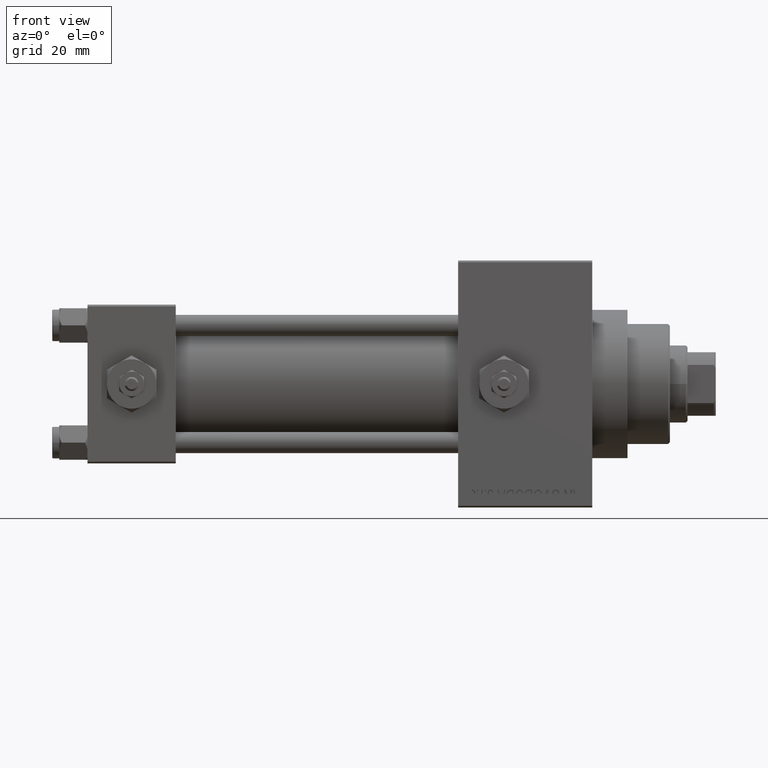
[diagram: clean part render]
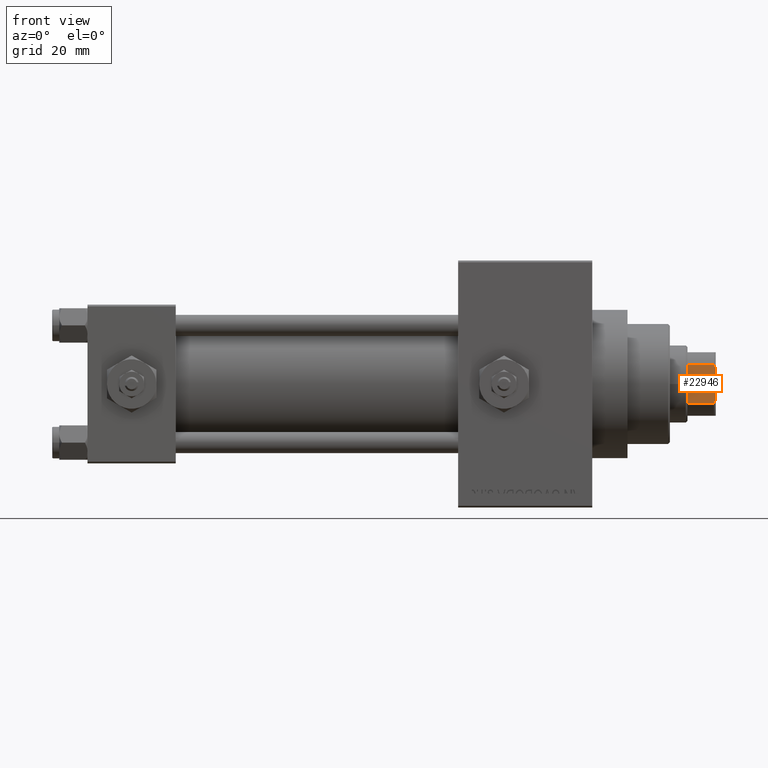
[diagram: same view with one face highlighted and labeled with its STEP entity id]
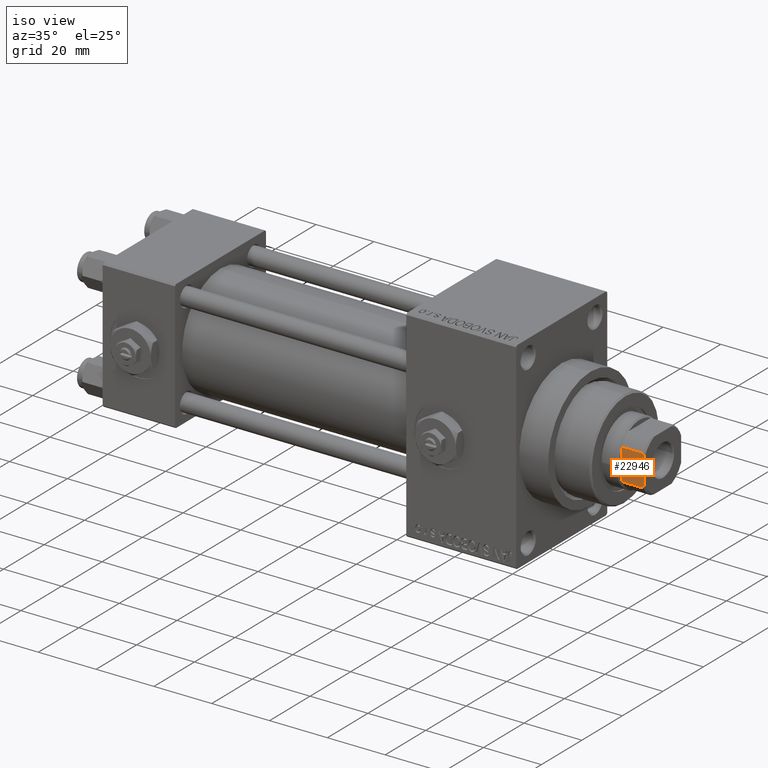
[diagram: same view with one face highlighted and labeled with its STEP entity id]
A machine part, front view. The second image highlights one B-rep face of the part: STEP entity #22946.
A second angle (iso view) of the same face is appended — the face is thin or edge-on in the first view.
In plain terms, the highlighted planar face has unit normal (0, 1, 0).
Its self-contained STEP definition (entity closure, byte-faithful):
#710 = DIRECTION ( 'NONE',  ( -1.927470528863119049E-16, 1.000000000000000000, -0.000000000000000000 ) ) ;
#982 = PLANE ( 'NONE',  #29408 ) ;
#1311 = DIRECTION ( 'NONE',  ( -0.000000000000000000, -0.000000000000000000, 1.000000000000000000 ) ) ;
#1381 = CARTESIAN_POINT ( 'NONE',  ( 8.999999999999996447, -5.408326913195990571, 152.5000000000000568 ) ) ;
#2366 = LINE ( 'NONE', #47356, #15179 ) ;
#4623 = CARTESIAN_POINT ( 'NONE',  ( 8.999999999999996447, 5.063687070142441904, 152.6775166608139216 ) ) ;
#8918 = CARTESIAN_POINT ( 'NONE',  ( 8.999999999999996447, 8.999999999999998224, 145.0000000000000284 ) ) ;
#8957 = EDGE_LOOP ( 'NONE', ( #22531, #10017, #26072, #28160, #10818, #29090 ) ) ;
#10017 = ORIENTED_EDGE ( 'NONE', *, *, #35320, .T. ) ;
#10818 = ORIENTED_EDGE ( 'NONE', *, *, #43238, .F. ) ;
#11495 = CARTESIAN_POINT ( 'NONE',  ( 8.999999999999996447, -5.408326913195990571, 152.5000000000000568 ) ) ;
#11687 = VERTEX_POINT ( 'NONE', #25813 ) ;
#12245 = CARTESIAN_POINT ( 'NONE',  ( 8.999999999999996447, -5.408326913195990571, -0.001000000000001000089 ) ) ;
#12371 = VERTEX_POINT ( 'NONE', #46015 ) ;
#12646 = FACE_OUTER_BOUND ( 'NONE', #8957, .T. ) ;
#12783 = VERTEX_POINT ( 'NONE', #1381 ) ;
#13804 = EDGE_CURVE ( 'NONE', #11687, #42621, #31543, .T. ) ;
#14472 = VECTOR ( 'NONE', #35511, 1000.000000000000000 ) ;
#15179 = VECTOR ( 'NONE', #21251, 1000.000000000000000 ) ;
#15573 = EDGE_CURVE ( 'NONE', #21461, #11687, #34767, .T. ) ;
#16145 = DIRECTION ( 'NONE',  ( -1.000000000000000000, -1.927470528863119049E-16, 0.000000000000000000 ) ) ;
#16390 = DIRECTION ( 'NONE',  ( 1.927470528863119049E-16, -1.000000000000000000, 0.000000000000000000 ) ) ;
#21251 = DIRECTION ( 'NONE',  ( -1.927470528863119049E-16, 1.000000000000000000, -0.000000000000000000 ) ) ;
#21461 = VERTEX_POINT ( 'NONE', #36085 ) ;
#22531 = ORIENTED_EDGE ( 'NONE', *, *, #13804, .T. ) ;
#22946 = ADVANCED_FACE ( 'NONE', ( #12646 ), #982, .F. ) ;
#23988 = CARTESIAN_POINT ( 'NONE',  ( 8.999999999999998224, 4.714305797500226269, 152.8450817439748732 ) ) ;
#24572 = B_SPLINE_CURVE_WITH_KNOTS ( 'NONE', 3,
 ( #41573, #48777, #42044, #11495 ),
 .UNSPECIFIED., .F., .F.,
 ( 4, 4 ),
 ( 0.000000000000000000, 0.001162453897363173059 ),
 .UNSPECIFIED. ) ;
#24639 = EDGE_CURVE ( 'NONE', #31947, #12371, #2366, .T. ) ;
#24709 = CARTESIAN_POINT ( 'NONE',  ( 8.999999999999998224, -4.358898943540684634, 153.0000000000000284 ) ) ;
#25813 = CARTESIAN_POINT ( 'NONE',  ( 8.999999999999996447, 5.408326913195991459, 145.0000000000000284 ) ) ;
#26072 = ORIENTED_EDGE ( 'NONE', *, *, #24639, .F. ) ;
#27340 = CARTESIAN_POINT ( 'NONE',  ( 8.999999999999996447, 8.999999999999998224, 153.0000000000000284 ) ) ;
#27592 = B_SPLINE_CURVE_WITH_KNOTS ( 'NONE', 3,
 ( #30964, #4623, #23988, #46113 ),
 .UNSPECIFIED., .F., .F.,
 ( 4, 4 ),
 ( 0.000000000000000000, 0.001162453897363235292 ),
 .UNSPECIFIED. ) ;
#28160 = ORIENTED_EDGE ( 'NONE', *, *, #44937, .T. ) ;
#28575 = CARTESIAN_POINT ( 'NONE',  ( 8.999999999999996447, 5.408326913195991459, 152.5000000000000000 ) ) ;
#29090 = ORIENTED_EDGE ( 'NONE', *, *, #15573, .T. ) ;
#29408 = AXIS2_PLACEMENT_3D ( 'NONE', #27340, #16145, #16390 ) ;
#30964 = CARTESIAN_POINT ( 'NONE',  ( 8.999999999999996447, 5.408326913195991459, 152.5000000000000000 ) ) ;
#31168 = VECTOR ( 'NONE', #710, 1000.000000000000000 ) ;
#31543 = LINE ( 'NONE', #46682, #14472 ) ;
#31947 = VERTEX_POINT ( 'NONE', #24709 ) ;
#32375 = LINE ( 'NONE', #12245, #33131 ) ;
#33131 = VECTOR ( 'NONE', #1311, 1000.000000000000000 ) ;
#34767 = LINE ( 'NONE', #8918, #31168 ) ;
#35320 = EDGE_CURVE ( 'NONE', #42621, #12371, #27592, .T. ) ;
#35511 = DIRECTION ( 'NONE',  ( -0.000000000000000000, -0.000000000000000000, 1.000000000000000000 ) ) ;
#36085 = CARTESIAN_POINT ( 'NONE',  ( 8.999999999999996447, -5.408326913195990571, 145.0000000000000284 ) ) ;
#41573 = CARTESIAN_POINT ( 'NONE',  ( 8.999999999999998224, -4.358898943540684634, 153.0000000000000284 ) ) ;
#42044 = CARTESIAN_POINT ( 'NONE',  ( 9.000000000000000000, -5.063687070142452562, 152.6775166608139500 ) ) ;
#42621 = VERTEX_POINT ( 'NONE', #28575 ) ;
#43238 = EDGE_CURVE ( 'NONE', #21461, #12783, #32375, .T. ) ;
#44937 = EDGE_CURVE ( 'NONE', #31947, #12783, #24572, .T. ) ;
#46015 = CARTESIAN_POINT ( 'NONE',  ( 8.999999999999998224, 4.358898943540643778, 153.0000000000000284 ) ) ;
#46113 = CARTESIAN_POINT ( 'NONE',  ( 8.999999999999998224, 4.358898943540643778, 153.0000000000000284 ) ) ;
#46682 = CARTESIAN_POINT ( 'NONE',  ( 8.999999999999996447, 5.408326913195991459, -0.001000000000001000089 ) ) ;
#47356 = CARTESIAN_POINT ( 'NONE',  ( 8.999999999999996447, 8.999999999999998224, 153.0000000000000284 ) ) ;
#48777 = CARTESIAN_POINT ( 'NONE',  ( 8.999999999999998224, -4.714305797500259132, 152.8450817439748732 ) ) ;